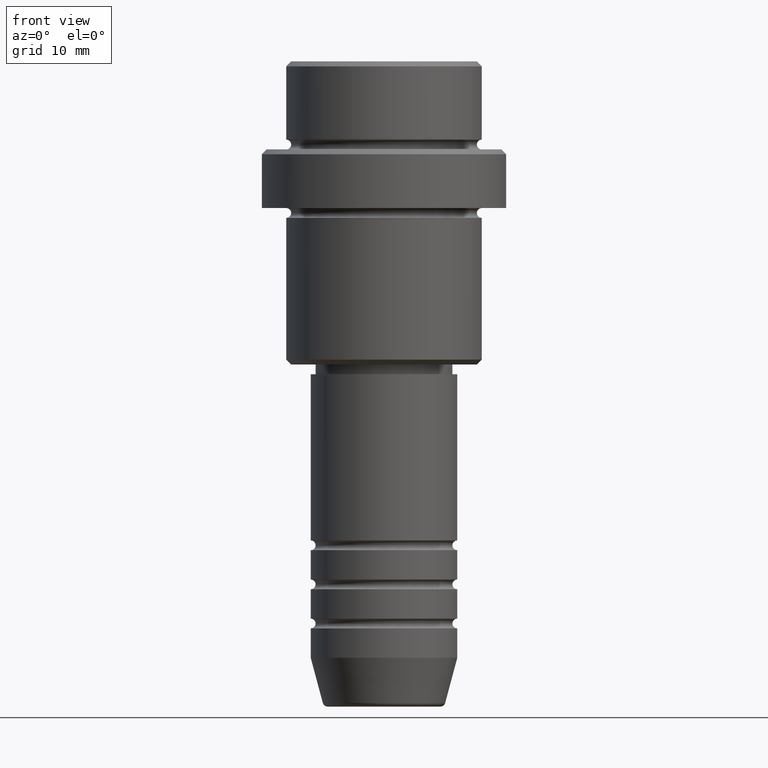
[diagram: clean part render]
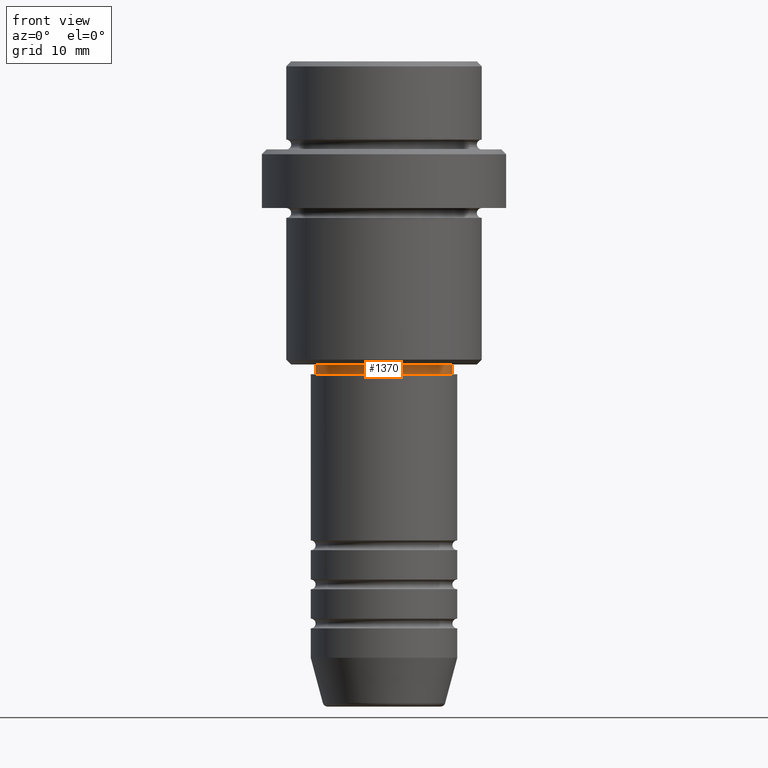
[diagram: same view with one face highlighted and labeled with its STEP entity id]
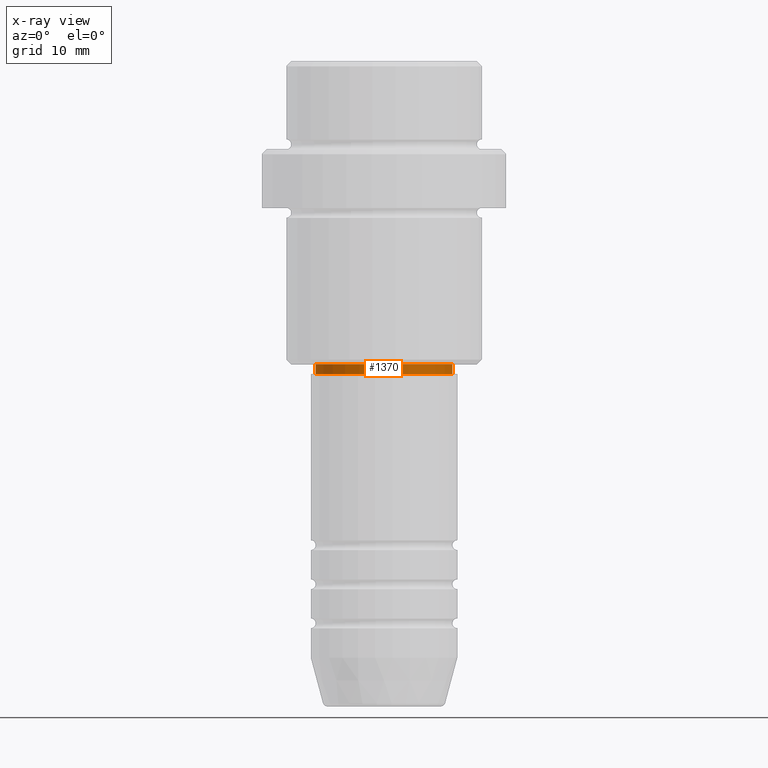
[diagram: x-ray of the same camera — body ghosted, the highlighted face saturated]
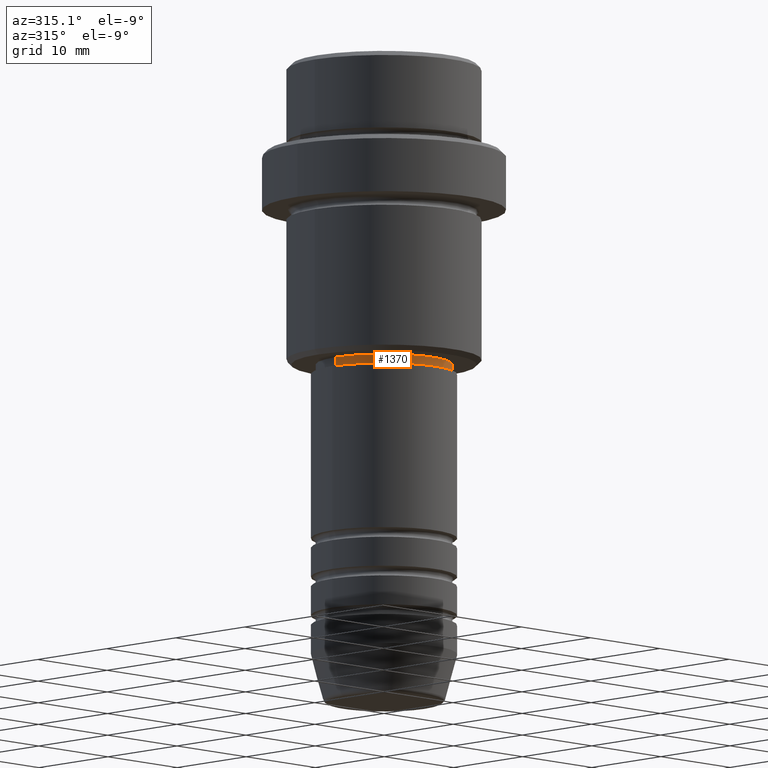
[diagram: same view with one face highlighted and labeled with its STEP entity id]
A machine part, front view. The second image highlights one B-rep face of the part: STEP entity #1370.
The next image is the same camera in x-ray: the body ghosted, the highlighted face saturated — about 0% of this face is hidden behind the body in this view.
A second angle (auxiliary view) of the same face is appended — the face is thin or edge-on in the first view.
In plain terms, the highlighted cylindrical surface (partial cylindrical patch) has radius 7 mm, axis along (-0, -0, 1).
Its self-contained STEP definition (entity closure, byte-faithful):
#32 = ORIENTED_EDGE ( 'NONE', *, *, #1310, .T. ) ;
#45 = EDGE_CURVE ( 'NONE', #409, #335, #621, .T. ) ;
#68 = CARTESIAN_POINT ( 'NONE',  ( -6.999999999999993783, 8.572527594031465301E-16, 0.000000000000000000 ) ) ;
#108 = VECTOR ( 'NONE', #1072, 1000.000000000000000 ) ;
#114 = CARTESIAN_POINT ( 'NONE',  ( 0.000000000000000000, 0.000000000000000000, -31.00000000000000000 ) ) ;
#117 = AXIS2_PLACEMENT_3D ( 'NONE', #738, #1204, #623 ) ;
#164 = CARTESIAN_POINT ( 'NONE',  ( 6.999999999999993783, 0.000000000000000000, -31.00000000000000000 ) ) ;
#195 = VERTEX_POINT ( 'NONE', #164 ) ;
#197 = FACE_OUTER_BOUND ( 'NONE', #1391, .T. ) ;
#251 = VECTOR ( 'NONE', #565, 1000.000000000000000 ) ;
#258 = LINE ( 'NONE', #560, #251 ) ;
#313 = ORIENTED_EDGE ( 'NONE', *, *, #986, .F. ) ;
#330 = DIRECTION ( 'NONE',  ( 1.000000000000000000, 0.000000000000000000, 0.000000000000000000 ) ) ;
#335 = VERTEX_POINT ( 'NONE', #391 ) ;
#391 = CARTESIAN_POINT ( 'NONE',  ( -6.999999999999993783, 8.572527594031465301E-16, -31.00000000000000000 ) ) ;
#396 = CARTESIAN_POINT ( 'NONE',  ( -6.999999999999993783, 8.572527594031465301E-16, -32.00000000000000000 ) ) ;
#409 = VERTEX_POINT ( 'NONE', #396 ) ;
#560 = CARTESIAN_POINT ( 'NONE',  ( 6.999999999999993783, 0.000000000000000000, 0.000000000000000000 ) ) ;
#565 = DIRECTION ( 'NONE',  ( -0.000000000000000000, -0.000000000000000000, 1.000000000000000000 ) ) ;
#605 = ORIENTED_EDGE ( 'NONE', *, *, #45, .F. ) ;
#621 = LINE ( 'NONE', #68, #108 ) ;
#623 = DIRECTION ( 'NONE',  ( 1.000000000000000000, 0.000000000000000000, 0.000000000000000000 ) ) ;
#652 = EDGE_CURVE ( 'NONE', #1094, #195, #258, .T. ) ;
#654 = CYLINDRICAL_SURFACE ( 'NONE', #1141, 6.999999999999993783 ) ;
#738 = CARTESIAN_POINT ( 'NONE',  ( 0.000000000000000000, 0.000000000000000000, -32.00000000000000000 ) ) ;
#813 = CARTESIAN_POINT ( 'NONE',  ( 6.999999999999993783, 0.000000000000000000, -32.00000000000000000 ) ) ;
#870 = DIRECTION ( 'NONE',  ( -0.000000000000000000, -0.000000000000000000, 1.000000000000000000 ) ) ;
#887 = DIRECTION ( 'NONE',  ( -0.000000000000000000, -0.000000000000000000, 1.000000000000000000 ) ) ;
#986 = EDGE_CURVE ( 'NONE', #335, #195, #1089, .T. ) ;
#1049 = ORIENTED_EDGE ( 'NONE', *, *, #652, .T. ) ;
#1064 = CIRCLE ( 'NONE', #117, 6.999999999999993783 ) ;
#1072 = DIRECTION ( 'NONE',  ( -0.000000000000000000, -0.000000000000000000, 1.000000000000000000 ) ) ;
#1089 = CIRCLE ( 'NONE', #1267, 6.999999999999993783 ) ;
#1094 = VERTEX_POINT ( 'NONE', #813 ) ;
#1106 = DIRECTION ( 'NONE',  ( 1.000000000000000000, 0.000000000000000000, 0.000000000000000000 ) ) ;
#1141 = AXIS2_PLACEMENT_3D ( 'NONE', #1414, #870, #1106 ) ;
#1204 = DIRECTION ( 'NONE',  ( -0.000000000000000000, -0.000000000000000000, 1.000000000000000000 ) ) ;
#1267 = AXIS2_PLACEMENT_3D ( 'NONE', #114, #887, #330 ) ;
#1310 = EDGE_CURVE ( 'NONE', #409, #1094, #1064, .T. ) ;
#1370 = ADVANCED_FACE ( 'NONE', ( #197 ), #654, .T. ) ;
#1391 = EDGE_LOOP ( 'NONE', ( #605, #32, #1049, #313 ) ) ;
#1414 = CARTESIAN_POINT ( 'NONE',  ( 0.000000000000000000, 0.000000000000000000, 0.000000000000000000 ) ) ;